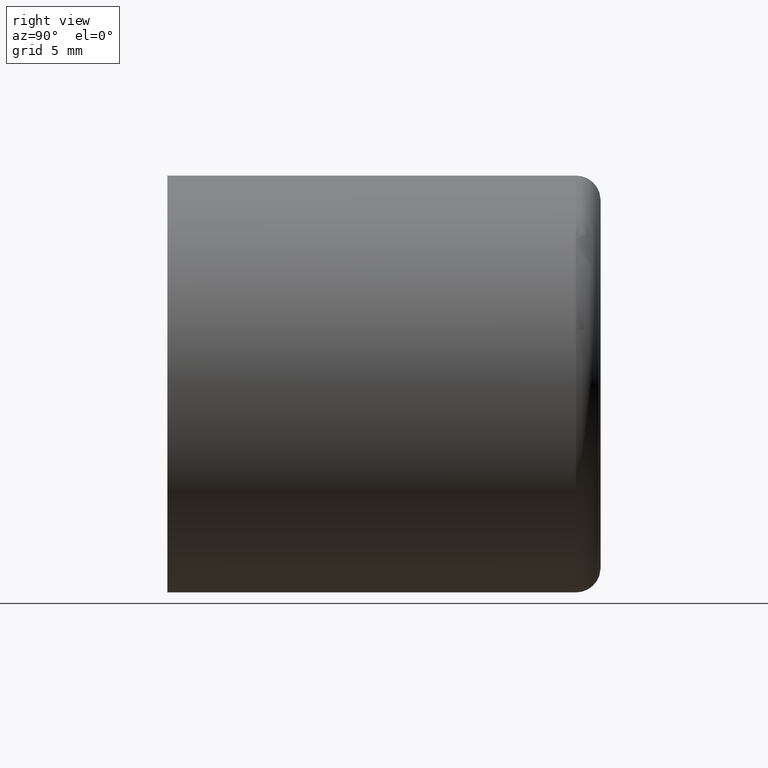
[diagram: clean part render]
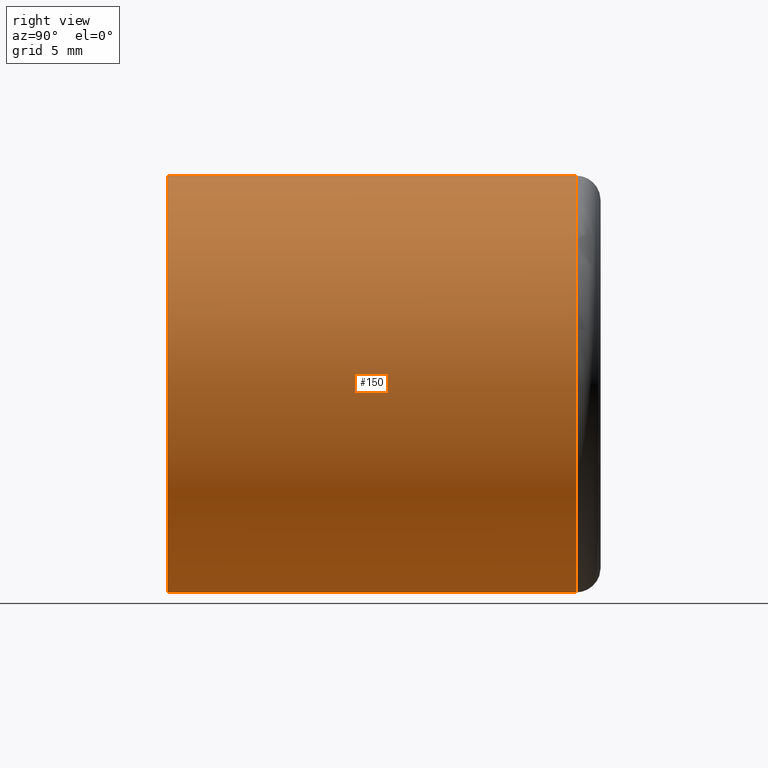
[diagram: same view with one face highlighted and labeled with its STEP entity id]
A machine part, right view. The second image highlights one B-rep face of the part: STEP entity #150.
In plain terms, the highlighted cylindrical surface (bore or boss wall) has radius 16.85 mm, axis along (-0, 1, -0).
Its self-contained STEP definition (entity closure, byte-faithful):
#84 = EDGE_CURVE ( 'NONE', #12783, #12783, #3499, .T. ) ;
#150 = ADVANCED_FACE ( 'NONE', ( #6612, #3165 ), #8414, .T. ) ;
#491 = EDGE_CURVE ( 'NONE', #9978, #9978, #11867, .T. ) ;
#1328 = AXIS2_PLACEMENT_3D ( 'NONE', #12739, #3301, #8716 ) ;
#3121 = DIRECTION ( 'NONE',  ( -7.248013002707695800E-018, 1.000000000000000000, -0.0000000000000000000 ) ) ;
#3165 = FACE_OUTER_BOUND ( 'NONE', #13005, .T. ) ;
#3301 = DIRECTION ( 'NONE',  ( -7.248013002707695800E-018, 1.000000000000000000, -0.0000000000000000000 ) ) ;
#3499 = CIRCLE ( 'NONE', #10031, 16.84999999999999800 ) ;
#3517 = CARTESIAN_POINT ( 'NONE',  ( -16.85000000000000100, -1.221290190956246700E-016, 0.0000000000000000000 ) ) ;
#5143 = CARTESIAN_POINT ( 'NONE',  ( 0.0000000000000000000, 0.0000000000000000000, 0.0000000000000000000 ) ) ;
#5291 = DIRECTION ( 'NONE',  ( -1.000000000000000000, 0.0000000000000000000, 0.0000000000000000000 ) ) ;
#5534 = EDGE_LOOP ( 'NONE', ( #11275 ) ) ;
#5751 = ORIENTED_EDGE ( 'NONE', *, *, #491, .T. ) ;
#6612 = FACE_OUTER_BOUND ( 'NONE', #5534, .T. ) ;
#7197 = DIRECTION ( 'NONE',  ( -1.000000000000000000, -7.248013002707694300E-018, 0.0000000000000000000 ) ) ;
#7402 = DIRECTION ( 'NONE',  ( -7.248013002707695800E-018, 1.000000000000000000, -0.0000000000000000000 ) ) ;
#7743 = CARTESIAN_POINT ( 'NONE',  ( -16.84999999999999800, 33.00000000000000000, 0.0000000000000000000 ) ) ;
#8414 = CYLINDRICAL_SURFACE ( 'NONE', #1328, 16.84999999999999800 ) ;
#8716 = DIRECTION ( 'NONE',  ( -1.000000000000000000, 0.0000000000000000000, 0.0000000000000000000 ) ) ;
#9978 = VERTEX_POINT ( 'NONE', #3517 ) ;
#10031 = AXIS2_PLACEMENT_3D ( 'NONE', #13559, #7402, #5291 ) ;
#10661 = AXIS2_PLACEMENT_3D ( 'NONE', #5143, #3121, #7197 ) ;
#11275 = ORIENTED_EDGE ( 'NONE', *, *, #84, .F. ) ;
#11867 = CIRCLE ( 'NONE', #10661, 16.85000000000000100 ) ;
#12739 = CARTESIAN_POINT ( 'NONE',  ( -2.319364160866462700E-016, 32.00000000000000000, 0.0000000000000000000 ) ) ;
#12783 = VERTEX_POINT ( 'NONE', #7743 ) ;
#13005 = EDGE_LOOP ( 'NONE', ( #5751 ) ) ;
#13559 = CARTESIAN_POINT ( 'NONE',  ( -2.391844290893539200E-016, 33.00000000000000000, 0.0000000000000000000 ) ) ;